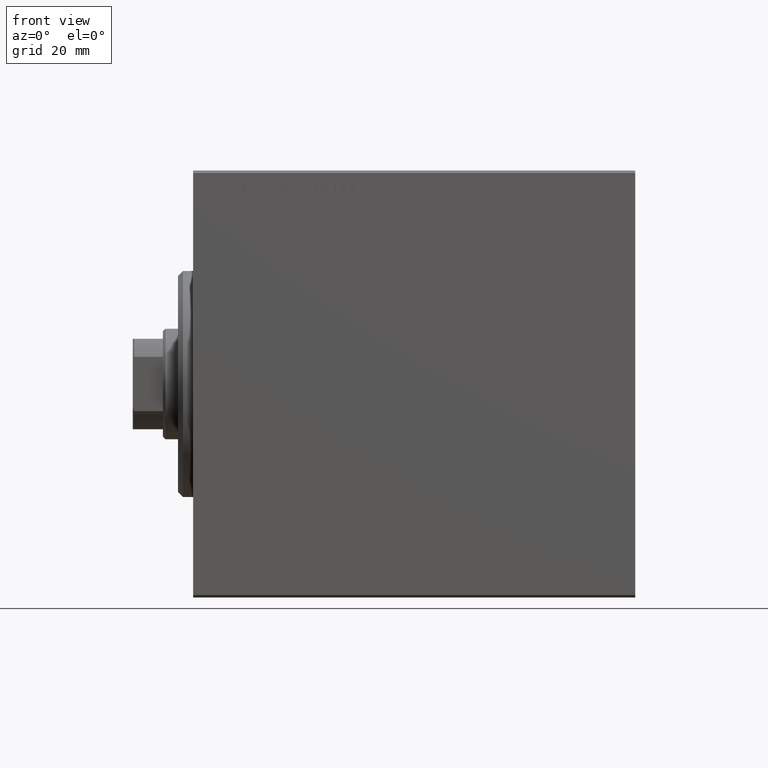
[diagram: clean part render]
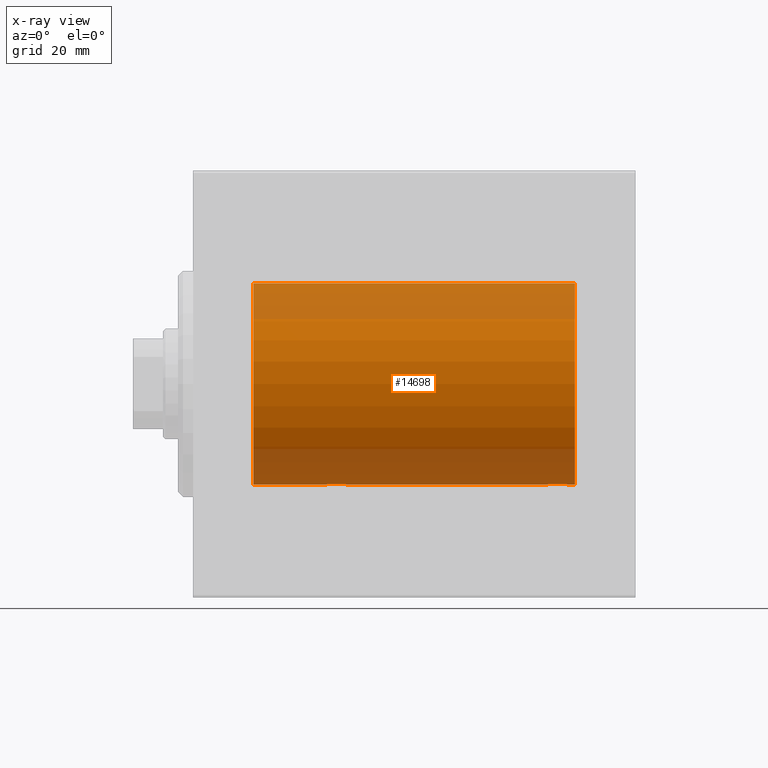
[diagram: x-ray — body ghosted, one internal face saturated and labeled with its STEP entity id]
A machine part, front view, then the same camera in x-ray: the body is ghosted and one INTERNAL B-rep face — a face not visible from any outside direction — is saturated and labeled: STEP entity #14698.
In plain terms, the highlighted cylindrical surface (partial cylindrical patch) has radius 20 mm, axis along (-1, -0, -0).
Its self-contained STEP definition (entity closure, byte-faithful):
#156 = CARTESIAN_POINT ( 'NONE',  ( 72.63365196142451907, -1.999898234284062104, -19.89975896996866211 ) ) ;
#428 = DIRECTION ( 'NONE',  ( -1.000000000000000000, 0.000000000000000000, 0.000000000000000000 ) ) ;
#647 = B_SPLINE_CURVE_WITH_KNOTS ( 'NONE', 3,
 ( #35175, #17699, #21490, #4437, #11177, #14986, #28420, #1076, #39188, #42569, #31583, #14550, #14765, #4874, #42122, #34954, #649, #18567, #11399, #860, #42348, #41685, #28205, #22139, #32233, #25063 ),
 .UNSPECIFIED., .F., .F.,
 ( 4, 2, 2, 2, 2, 2, 2, 2, 2, 2, 2, 2, 4 ),
 ( 0.006256819553329842284, 0.007038738568778818427, 0.007820657584227792836, 0.008211617091952278305, 0.008602576599676762040, 0.008993536107401245774, 0.009384495615125729509, 0.009775455122850213244, 0.01016641463057469871, 0.01055737413829918071, 0.01094833364602366618, 0.01173025266147263365, 0.01251217167692159939 ),
 .UNSPECIFIED. ) ;
#649 = CARTESIAN_POINT ( 'NONE',  ( 27.85651471266959334, -1.898187925611338533, -19.90978194174746818 ) ) ;
#860 = CARTESIAN_POINT ( 'NONE',  ( 27.28194580527848601, -1.591668229360197140, -19.93669678979812332 ) ) ;
#1076 = CARTESIAN_POINT ( 'NONE',  ( 29.50306556339602437, -1.735203193119894349, -19.92471783160910803 ) ) ;
#1790 = LINE ( 'NONE', #6649, #21760 ) ;
#2060 = VERTEX_POINT ( 'NONE', #10795 ) ;
#2850 = AXIS2_PLACEMENT_3D ( 'NONE', #41567, #20713, #10837 ) ;
#2917 = FACE_OUTER_BOUND ( 'NONE', #20290, .T. ) ;
#3285 = CARTESIAN_POINT ( 'NONE',  ( 73.14630673924648363, -1.897222639860595139, -19.90987429971497136 ) ) ;
#3514 = CARTESIAN_POINT ( 'NONE',  ( 74.50000000000001421, 2.449293582762867932E-15, -20.00000000000000000 ) ) ;
#3601 = DIRECTION ( 'NONE',  ( 0.000000000000000000, 0.000000000000000000, 1.000000000000000000 ) ) ;
#3787 = CARTESIAN_POINT ( 'NONE',  ( 76.00000000000000000, 0.000000000000000000, 0.000000000000000000 ) ) ;
#4077 = CARTESIAN_POINT ( 'NONE',  ( 76.00000000000000000, 2.449293598294706513E-15, -20.00000000000000000 ) ) ;
#4437 = CARTESIAN_POINT ( 'NONE',  ( 30.24825913460018612, -1.005710574260838985, -19.97614991974274190 ) ) ;
#4874 = CARTESIAN_POINT ( 'NONE',  ( 28.36941128289166159, -2.000100592782553921, -19.89973863218036598 ) ) ;
#4979 = CARTESIAN_POINT ( 'NONE',  ( 76.00000000000000000, 2.449293598294706513E-15, -20.00000000000000000 ) ) ;
#5977 = CARTESIAN_POINT ( 'NONE',  ( 72.23922743968432769, -1.987205673487811630, -19.90104673894211018 ) ) ;
#6649 = CARTESIAN_POINT ( 'NONE',  ( 76.00000000000000000, 0.000000000000000000, 20.00000000000000000 ) ) ;
#7464 = VERTEX_POINT ( 'NONE', #4979 ) ;
#7570 = CARTESIAN_POINT ( 'NONE',  ( 26.50000000000000355, -3.809869420541414000E-15, -20.00000000000000000 ) ) ;
#8878 = EDGE_CURVE ( 'NONE', #7464, #12585, #17875, .T. ) ;
#9567 = CARTESIAN_POINT ( 'NONE',  ( 70.75313023696928383, -1.008108445278686816, -19.97602680192586178 ) ) ;
#9828 = EDGE_CURVE ( 'NONE', #7464, #10620, #35401, .T. ) ;
#9867 = VECTOR ( 'NONE', #19464, 1000.000000000000000 ) ;
#10620 = VERTEX_POINT ( 'NONE', #35861 ) ;
#10795 = CARTESIAN_POINT ( 'NONE',  ( 70.50000000000000000, -5.133775462521235346E-15, -20.00000000000000000 ) ) ;
#10837 = DIRECTION ( 'NONE',  ( 0.000000000000000000, 0.000000000000000000, 1.000000000000000000 ) ) ;
#10992 = VERTEX_POINT ( 'NONE', #20249 ) ;
#11021 = EDGE_CURVE ( 'NONE', #10992, #33592, #22196, .T. ) ;
#11177 = CARTESIAN_POINT ( 'NONE',  ( 30.09941524884030173, -1.228758402364235502, -19.96307487248084911 ) ) ;
#11399 = CARTESIAN_POINT ( 'NONE',  ( 27.49932780860757475, -1.736582545981376180, -19.92459705242981371 ) ) ;
#11420 = AXIS2_PLACEMENT_3D ( 'NONE', #3787, #428, #33839 ) ;
#12180 = ORIENTED_EDGE ( 'NONE', *, *, #9828, .T. ) ;
#12318 = EDGE_CURVE ( 'NONE', #17631, #40322, #647, .T. ) ;
#12585 = VERTEX_POINT ( 'NONE', #29440 ) ;
#12941 = CARTESIAN_POINT ( 'NONE',  ( 73.82306668919467540, -1.505486175075773758, -19.94347168299867690 ) ) ;
#12971 = ORIENTED_EDGE ( 'NONE', *, *, #20784, .T. ) ;
#13156 = CARTESIAN_POINT ( 'NONE',  ( 73.01923512135279282, -1.935816449315126642, -19.90611141657402072 ) ) ;
#13620 = CARTESIAN_POINT ( 'NONE',  ( 70.90225308445273811, -1.230936344679278038, -19.96293863536309487 ) ) ;
#13711 = CYLINDRICAL_SURFACE ( 'NONE', #14352, 20.00000000000000000 ) ;
#14352 = AXIS2_PLACEMENT_3D ( 'NONE', #20656, #33870, #3601 ) ;
#14550 = CARTESIAN_POINT ( 'NONE',  ( 28.76358144091416236, -1.986835489085814199, -19.90108393514801222 ) ) ;
#14698 = ADVANCED_FACE ( 'NONE', ( #2917 ), #13711, .F. ) ;
#14765 = CARTESIAN_POINT ( 'NONE',  ( 28.63365196142448355, -1.999898234284062992, -19.89975896996866211 ) ) ;
#14986 = CARTESIAN_POINT ( 'NONE',  ( 29.82306668919470383, -1.505486175075772870, -19.94347168299867334 ) ) ;
#16333 = ORIENTED_EDGE ( 'NONE', *, *, #8878, .F. ) ;
#16523 = CARTESIAN_POINT ( 'NONE',  ( 72.36941128289164737, -2.000100592782554809, -19.89973863218035888 ) ) ;
#16976 = CARTESIAN_POINT ( 'NONE',  ( 72.76358144091415170, -1.986835489085815309, -19.90108393514801577 ) ) ;
#17631 = VERTEX_POINT ( 'NONE', #37791 ) ;
#17699 = CARTESIAN_POINT ( 'NONE',  ( 30.49999999999999645, -0.2610801504281900498, -19.99999999999999645 ) ) ;
#17875 = CIRCLE ( 'NONE', #11420, 20.00000000000000000 ) ;
#18567 = CARTESIAN_POINT ( 'NONE',  ( 27.61420923329272981, -1.797933656607917596, -19.91908554465558367 ) ) ;
#19016 = CARTESIAN_POINT ( 'NONE',  ( 76.00000000000000000, 2.449293598294706513E-15, -20.00000000000000000 ) ) ;
#19464 = DIRECTION ( 'NONE',  ( -1.000000000000000000, -0.000000000000000000, -0.000000000000000000 ) ) ;
#19658 = CARTESIAN_POINT ( 'NONE',  ( 73.72028945794465926, -1.589957321664207113, -19.93683391378736758 ) ) ;
#20249 = CARTESIAN_POINT ( 'NONE',  ( 11.99999999999999645, 2.449293598294706513E-15, -20.00000000000000000 ) ) ;
#20290 = EDGE_LOOP ( 'NONE', ( #16333, #12180, #12971, #33808, #28033, #42259, #44373, #22725 ) ) ;
#20336 = CARTESIAN_POINT ( 'NONE',  ( 74.09941524884031594, -1.228758402364235947, -19.96307487248084556 ) ) ;
#20656 = CARTESIAN_POINT ( 'NONE',  ( 76.00000000000000000, 0.000000000000000000, 0.000000000000000000 ) ) ;
#20713 = DIRECTION ( 'NONE',  ( -1.000000000000000000, 0.000000000000000000, 0.000000000000000000 ) ) ;
#20784 = EDGE_CURVE ( 'NONE', #10620, #2060, #21418, .T. ) ;
#21418 = B_SPLINE_CURVE_WITH_KNOTS ( 'NONE', 3,
 ( #3514, #30869, #44110, #36708, #20336, #12941, #19658, #37382, #23459, #3285, #13156, #16976, #156, #16523, #5977, #26594, #29966, #43668, #30638, #40291, #37155, #13620, #9567, #30188, #43885, #26809 ),
 .UNSPECIFIED., .F., .F.,
 ( 4, 2, 2, 2, 2, 2, 2, 2, 2, 2, 2, 2, 4 ),
 ( 0.006256819553329831876, 0.007038738568778780264, 0.007820657584227728651, 0.008211617091952217590, 0.008602576599676706529, 0.008993536107401195467, 0.009384495615125684406, 0.009775455122850173345, 0.01016641463057466055, 0.01055737413829914775, 0.01094833364602363843, 0.01173025266147261284, 0.01251217167692158898 ),
 .UNSPECIFIED. ) ;
#21490 = CARTESIAN_POINT ( 'NONE',  ( 30.44755062882508412, -0.5243189001514996228, -19.99457699142849876 ) ) ;
#21563 = DIRECTION ( 'NONE',  ( -1.000000000000000000, -0.000000000000000000, -0.000000000000000000 ) ) ;
#21760 = VECTOR ( 'NONE', #33166, 1000.000000000000000 ) ;
#22139 = CARTESIAN_POINT ( 'NONE',  ( 26.55320515808203297, -0.5270924491156698810, -19.99450181871976184 ) ) ;
#22196 = CIRCLE ( 'NONE', #2850, 20.00000000000000000 ) ;
#22235 = EDGE_CURVE ( 'NONE', #2060, #17631, #38623, .T. ) ;
#22725 = ORIENTED_EDGE ( 'NONE', *, *, #30079, .F. ) ;
#23459 = CARTESIAN_POINT ( 'NONE',  ( 73.38829437207093065, -1.796691196322316886, -19.91919800395357143 ) ) ;
#25063 = CARTESIAN_POINT ( 'NONE',  ( 26.50000000000000355, -3.809869420541414000E-15, -20.00000000000000000 ) ) ;
#25959 = LINE ( 'NONE', #33813, #9867 ) ;
#26594 = CARTESIAN_POINT ( 'NONE',  ( 71.98351467081099031, -1.936551476643008529, -19.90603968831099024 ) ) ;
#26809 = CARTESIAN_POINT ( 'NONE',  ( 70.50000000000000000, -5.133775462521235346E-15, -20.00000000000000000 ) ) ;
#28033 = ORIENTED_EDGE ( 'NONE', *, *, #12318, .T. ) ;
#28205 = CARTESIAN_POINT ( 'NONE',  ( 26.75313023696928738, -1.008108445278687704, -19.97602680192586533 ) ) ;
#28420 = CARTESIAN_POINT ( 'NONE',  ( 29.72028945794465571, -1.589957321664208223, -19.93683391378736047 ) ) ;
#29440 = CARTESIAN_POINT ( 'NONE',  ( 76.00000000000000000, 0.000000000000000000, 20.00000000000000000 ) ) ;
#29966 = CARTESIAN_POINT ( 'NONE',  ( 71.85651471266959334, -1.898187925611341198, -19.90978194174746818 ) ) ;
#30079 = EDGE_CURVE ( 'NONE', #12585, #33592, #1790, .T. ) ;
#30188 = CARTESIAN_POINT ( 'NONE',  ( 70.55320515808200810, -0.5270924491156711023, -19.99450181871975474 ) ) ;
#30638 = CARTESIAN_POINT ( 'NONE',  ( 71.49932780860757475, -1.736582545981372405, -19.92459705242980661 ) ) ;
#30869 = CARTESIAN_POINT ( 'NONE',  ( 74.50000000000002842, -0.2610801504281906049, -19.99999999999999645 ) ) ;
#31583 = CARTESIAN_POINT ( 'NONE',  ( 29.01923512135276795, -1.935816449315124643, -19.90611141657401717 ) ) ;
#32233 = CARTESIAN_POINT ( 'NONE',  ( 26.50000000000001066, -0.2644051013331030209, -20.00000000000000355 ) ) ;
#33166 = DIRECTION ( 'NONE',  ( -1.000000000000000000, -0.000000000000000000, -0.000000000000000000 ) ) ;
#33592 = VERTEX_POINT ( 'NONE', #37307 ) ;
#33808 = ORIENTED_EDGE ( 'NONE', *, *, #22235, .T. ) ;
#33813 = CARTESIAN_POINT ( 'NONE',  ( 76.00000000000000000, 2.449293598294706513E-15, -20.00000000000000000 ) ) ;
#33839 = DIRECTION ( 'NONE',  ( 0.000000000000000000, 0.000000000000000000, 1.000000000000000000 ) ) ;
#33870 = DIRECTION ( 'NONE',  ( -1.000000000000000000, -0.000000000000000000, -0.000000000000000000 ) ) ;
#34954 = CARTESIAN_POINT ( 'NONE',  ( 27.98351467081095123, -1.936551476643005198, -19.90603968831098314 ) ) ;
#35175 = CARTESIAN_POINT ( 'NONE',  ( 30.50000000000000000, 2.449293582768389958E-15, -20.00000000000000000 ) ) ;
#35401 = LINE ( 'NONE', #19016, #37218 ) ;
#35861 = CARTESIAN_POINT ( 'NONE',  ( 74.50000000000001421, 2.449293582762867932E-15, -20.00000000000000000 ) ) ;
#36708 = CARTESIAN_POINT ( 'NONE',  ( 74.24825913460018967, -1.005710574260840984, -19.97614991974274901 ) ) ;
#37155 = CARTESIAN_POINT ( 'NONE',  ( 71.17903093152709459, -1.507328959728491791, -19.94333197382385592 ) ) ;
#37218 = VECTOR ( 'NONE', #39420, 1000.000000000000000 ) ;
#37307 = CARTESIAN_POINT ( 'NONE',  ( 11.99999999999999645, 0.000000000000000000, 20.00000000000000000 ) ) ;
#37382 = CARTESIAN_POINT ( 'NONE',  ( 73.50306556339603503, -1.735203193119893461, -19.92471783160911514 ) ) ;
#37791 = CARTESIAN_POINT ( 'NONE',  ( 30.50000000000000000, 2.449293582768389958E-15, -20.00000000000000000 ) ) ;
#38623 = LINE ( 'NONE', #4077, #41043 ) ;
#39188 = CARTESIAN_POINT ( 'NONE',  ( 29.38829437207091999, -1.796691196322316664, -19.91919800395357143 ) ) ;
#39420 = DIRECTION ( 'NONE',  ( -1.000000000000000000, -0.000000000000000000, -0.000000000000000000 ) ) ;
#40291 = CARTESIAN_POINT ( 'NONE',  ( 71.28194580527849666, -1.591668229360193143, -19.93669678979812332 ) ) ;
#40322 = VERTEX_POINT ( 'NONE', #7570 ) ;
#40996 = EDGE_CURVE ( 'NONE', #40322, #10992, #25959, .T. ) ;
#41043 = VECTOR ( 'NONE', #21563, 1000.000000000000000 ) ;
#41567 = CARTESIAN_POINT ( 'NONE',  ( 11.99999999999999645, 0.000000000000000000, 0.000000000000000000 ) ) ;
#41685 = CARTESIAN_POINT ( 'NONE',  ( 26.90225308445269903, -1.230936344679278260, -19.96293863536309132 ) ) ;
#42122 = CARTESIAN_POINT ( 'NONE',  ( 28.23922743968432059, -1.987205673487808966, -19.90104673894211018 ) ) ;
#42259 = ORIENTED_EDGE ( 'NONE', *, *, #40996, .T. ) ;
#42348 = CARTESIAN_POINT ( 'NONE',  ( 27.17903093152710525, -1.507328959728492457, -19.94333197382385592 ) ) ;
#42569 = CARTESIAN_POINT ( 'NONE',  ( 29.14630673924643744, -1.897222639860594029, -19.90987429971496780 ) ) ;
#43668 = CARTESIAN_POINT ( 'NONE',  ( 71.61420923329269783, -1.797933656607920039, -19.91908554465557657 ) ) ;
#43885 = CARTESIAN_POINT ( 'NONE',  ( 70.50000000000000000, -0.2644051013331069067, -19.99999999999999289 ) ) ;
#44110 = CARTESIAN_POINT ( 'NONE',  ( 74.44755062882509833, -0.5243189001515005110, -19.99457699142850231 ) ) ;
#44373 = ORIENTED_EDGE ( 'NONE', *, *, #11021, .T. ) ;